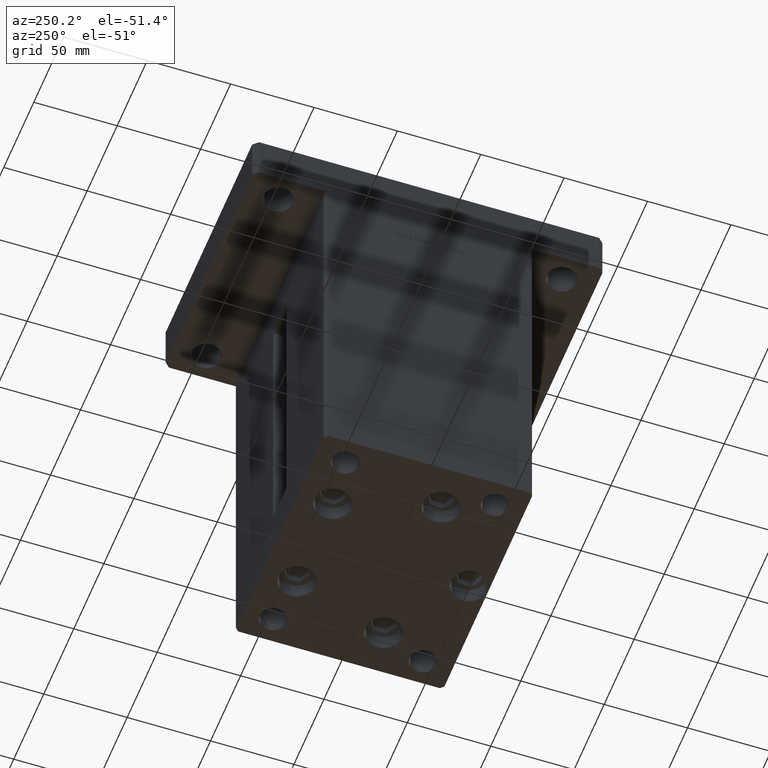
[diagram: clean part render]
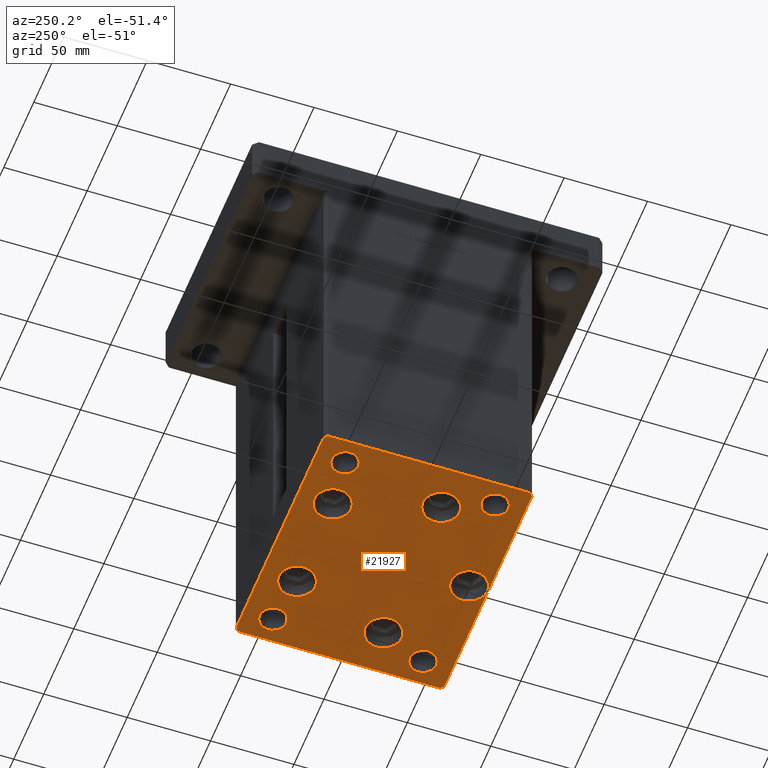
[diagram: same view with one face highlighted and labeled with its STEP entity id]
A machine part, auxiliary view. The second image highlights one B-rep face of the part: STEP entity #21927.
In plain terms, the highlighted planar face has unit normal (0, 0, -1).
Its self-contained STEP definition (entity closure, byte-faithful):
#543 = VECTOR ( 'NONE', #2742, 1000.000000000000000 ) ;
#996 = LINE ( 'NONE', #47949, #27653 ) ;
#1145 = DIRECTION ( 'NONE',  ( -0.000000000000000000, 0.000000000000000000, 1.000000000000000000 ) ) ;
#1246 = AXIS2_PLACEMENT_3D ( 'NONE', #38789, #34855, #47705 ) ;
#1390 = EDGE_CURVE ( 'NONE', #47092, #22285, #41064, .T. ) ;
#1594 = EDGE_CURVE ( 'NONE', #47711, #4756, #25498, .T. ) ;
#1863 = ORIENTED_EDGE ( 'NONE', *, *, #53263, .T. ) ;
#1874 = CARTESIAN_POINT ( 'NONE',  ( 60.00000000000000000, -44.99999999999999289, 0.000000000000000000 ) ) ;
#2217 = DIRECTION ( 'NONE',  ( 1.000000000000000000, 0.000000000000000000, 0.000000000000000000 ) ) ;
#2742 = DIRECTION ( 'NONE',  ( -6.881547673296424104E-16, 1.000000000000000000, 0.000000000000000000 ) ) ;
#2806 = VERTEX_POINT ( 'NONE', #42045 ) ;
#3292 = AXIS2_PLACEMENT_3D ( 'NONE', #18413, #31273, #48306 ) ;
#3450 = DIRECTION ( 'NONE',  ( 0.000000000000000000, -0.000000000000000000, -1.000000000000000000 ) ) ;
#3507 = FACE_BOUND ( 'NONE', #14897, .T. ) ;
#3546 = DIRECTION ( 'NONE',  ( 0.000000000000000000, -0.000000000000000000, -1.000000000000000000 ) ) ;
#3828 = ORIENTED_EDGE ( 'NONE', *, *, #43354, .T. ) ;
#4528 = VERTEX_POINT ( 'NONE', #41470 ) ;
#4538 = ORIENTED_EDGE ( 'NONE', *, *, #49348, .T. ) ;
#4756 = VERTEX_POINT ( 'NONE', #36372 ) ;
#5054 = CIRCLE ( 'NONE', #38977, 11.00000000000000000 ) ;
#5192 = CARTESIAN_POINT ( 'NONE',  ( -40.73102073172060500, 41.43749999999998579, 0.000000000000000000 ) ) ;
#5193 = VERTEX_POINT ( 'NONE', #8831 ) ;
#6297 = ORIENTED_EDGE ( 'NONE', *, *, #24275, .F. ) ;
#6697 = VERTEX_POINT ( 'NONE', #44289 ) ;
#7385 = CARTESIAN_POINT ( 'NONE',  ( -51.99999999999999289, -45.00000000000000000, 0.000000000000000000 ) ) ;
#7734 = ORIENTED_EDGE ( 'NONE', *, *, #32383, .T. ) ;
#7786 = VECTOR ( 'NONE', #15403, 1000.000000000000114 ) ;
#8065 = CARTESIAN_POINT ( 'NONE',  ( 75.00000000000001421, -60.50000000000000711, 0.000000000000000000 ) ) ;
#8517 = CARTESIAN_POINT ( 'NONE',  ( 68.00000000000000000, -44.99999999999999289, 0.000000000000000000 ) ) ;
#8586 = CIRCLE ( 'NONE', #40719, 11.00000000000000355 ) ;
#8831 = CARTESIAN_POINT ( 'NONE',  ( 11.00000000000000711, -51.00000000000000000, 0.000000000000000000 ) ) ;
#9202 = DIRECTION ( 'NONE',  ( 0.000000000000000000, -0.000000000000000000, -1.000000000000000000 ) ) ;
#9730 = CIRCLE ( 'NONE', #28615, 10.99999999999999645 ) ;
#10327 = CARTESIAN_POINT ( 'NONE',  ( 60.00000000000000000, 44.99999999999999289, 0.000000000000000000 ) ) ;
#11375 = DIRECTION ( 'NONE',  ( 1.000000000000000000, 0.000000000000000000, 0.000000000000000000 ) ) ;
#11486 = CARTESIAN_POINT ( 'NONE',  ( -73.00000000000001421, 62.49999999999998579, 0.000000000000000000 ) ) ;
#11679 = DIRECTION ( 'NONE',  ( 1.000000000000000000, 0.000000000000000000, 0.000000000000000000 ) ) ;
#11699 = CARTESIAN_POINT ( 'NONE',  ( -75.00000000000001421, -60.50000000000001421, 0.000000000000000000 ) ) ;
#11700 = ORIENTED_EDGE ( 'NONE', *, *, #34774, .T. ) ;
#11723 = CARTESIAN_POINT ( 'NONE',  ( -52.00000000000000000, 45.00000000000000000, 0.000000000000000000 ) ) ;
#12027 = ORIENTED_EDGE ( 'NONE', *, *, #12325, .T. ) ;
#12119 = AXIS2_PLACEMENT_3D ( 'NONE', #29812, #41849, #24236 ) ;
#12325 = EDGE_CURVE ( 'NONE', #21466, #32756, #37883, .T. ) ;
#12528 = EDGE_CURVE ( 'NONE', #54091, #13635, #28061, .T. ) ;
#12656 = CIRCLE ( 'NONE', #43012, 8.000000000000000000 ) ;
#12814 = ORIENTED_EDGE ( 'NONE', *, *, #49554, .T. ) ;
#13002 = VECTOR ( 'NONE', #37692, 1000.000000000000114 ) ;
#13470 = DIRECTION ( 'NONE',  ( -0.000000000000000000, 0.000000000000000000, 1.000000000000000000 ) ) ;
#13635 = VERTEX_POINT ( 'NONE', #8517 ) ;
#14198 = ORIENTED_EDGE ( 'NONE', *, *, #1390, .T. ) ;
#14472 = CARTESIAN_POINT ( 'NONE',  ( -29.73102073172060500, 41.43749999999998579, 0.000000000000000000 ) ) ;
#14740 = EDGE_CURVE ( 'NONE', #53317, #6697, #38839, .T. ) ;
#14855 = EDGE_CURVE ( 'NONE', #30073, #39517, #53975, .T. ) ;
#14897 = EDGE_LOOP ( 'NONE', ( #40157, #28334 ) ) ;
#15128 = CIRCLE ( 'NONE', #27622, 11.00000000000000355 ) ;
#15403 = DIRECTION ( 'NONE',  ( -0.7071067811865451302, -0.7071067811865500152, 0.000000000000000000 ) ) ;
#15523 = FACE_BOUND ( 'NONE', #29633, .T. ) ;
#15888 = LINE ( 'NONE', #49967, #543 ) ;
#15898 = CIRCLE ( 'NONE', #18586, 11.00000000000000355 ) ;
#16287 = CARTESIAN_POINT ( 'NONE',  ( -73.00000000000001421, -62.50000000000002842, 0.000000000000000000 ) ) ;
#16393 = VERTEX_POINT ( 'NONE', #39264 ) ;
#16460 = EDGE_LOOP ( 'NONE', ( #22301, #17371 ) ) ;
#16533 = AXIS2_PLACEMENT_3D ( 'NONE', #51470, #13470, #26608 ) ;
#16793 = VERTEX_POINT ( 'NONE', #33015 ) ;
#16820 = DIRECTION ( 'NONE',  ( 0.7071067811865463515, 0.7071067811865487940, 0.000000000000000000 ) ) ;
#16954 = ORIENTED_EDGE ( 'NONE', *, *, #35555, .T. ) ;
#17371 = ORIENTED_EDGE ( 'NONE', *, *, #12528, .T. ) ;
#18130 = DIRECTION ( 'NONE',  ( -0.7071067811865500152, 0.7071067811865451302, 0.000000000000000000 ) ) ;
#18413 = CARTESIAN_POINT ( 'NONE',  ( -60.00000000000000000, 45.00000000000000000, 0.000000000000000000 ) ) ;
#18513 = DIRECTION ( 'NONE',  ( 1.000000000000000000, 0.000000000000000000, 0.000000000000000000 ) ) ;
#18586 = AXIS2_PLACEMENT_3D ( 'NONE', #43564, #9202, #46940 ) ;
#18643 = ORIENTED_EDGE ( 'NONE', *, *, #14740, .F. ) ;
#18668 = ORIENTED_EDGE ( 'NONE', *, *, #50586, .T. ) ;
#19234 = CARTESIAN_POINT ( 'NONE',  ( 51.99999999999999289, -44.99999999999999289, 0.000000000000000000 ) ) ;
#19452 = VERTEX_POINT ( 'NONE', #7385 ) ;
#20073 = CARTESIAN_POINT ( 'NONE',  ( 74.99999999999992895, 60.50000000000002842, 0.000000000000000000 ) ) ;
#20228 = VECTOR ( 'NONE', #18130, 1000.000000000000114 ) ;
#20289 = CARTESIAN_POINT ( 'NONE',  ( 18.73102073172060500, 41.43749999999999289, 0.000000000000000000 ) ) ;
#20763 = DIRECTION ( 'NONE',  ( 1.000000000000000000, 0.000000000000000000, 0.000000000000000000 ) ) ;
#21012 = CARTESIAN_POINT ( 'NONE',  ( 73.00000000000001421, -62.50000000000001421, 0.000000000000000000 ) ) ;
#21077 = EDGE_LOOP ( 'NONE', ( #26524, #6297 ) ) ;
#21318 = ORIENTED_EDGE ( 'NONE', *, *, #42330, .T. ) ;
#21466 = VERTEX_POINT ( 'NONE', #45893 ) ;
#21646 = CARTESIAN_POINT ( 'NONE',  ( 60.00000000000000000, -44.99999999999999289, 0.000000000000000000 ) ) ;
#21693 = EDGE_LOOP ( 'NONE', ( #18668, #12027 ) ) ;
#21927 = ADVANCED_FACE ( 'NONE', ( #41233, #28936, #41800, #3507, #15523, #40959, #27826, #32551, #44851, #23627 ), #36475, .T. ) ;
#22285 = VERTEX_POINT ( 'NONE', #16287 ) ;
#22301 = ORIENTED_EDGE ( 'NONE', *, *, #23953, .T. ) ;
#22571 = DIRECTION ( 'NONE',  ( 0.000000000000000000, -0.000000000000000000, -1.000000000000000000 ) ) ;
#22676 = AXIS2_PLACEMENT_3D ( 'NONE', #14472, #52190, #47728 ) ;
#22813 = EDGE_CURVE ( 'NONE', #40563, #47092, #31815, .T. ) ;
#23234 = VERTEX_POINT ( 'NONE', #41351 ) ;
#23627 = FACE_BOUND ( 'NONE', #47702, .T. ) ;
#23661 = DIRECTION ( 'NONE',  ( 1.000000000000000000, 0.000000000000000000, 0.000000000000000000 ) ) ;
#23826 = AXIS2_PLACEMENT_3D ( 'NONE', #21646, #35311, #26393 ) ;
#23953 = EDGE_CURVE ( 'NONE', #13635, #54091, #37186, .T. ) ;
#24016 = EDGE_LOOP ( 'NONE', ( #14198, #16954, #11700, #12814, #4538, #21318, #26557, #51904 ) ) ;
#24236 = DIRECTION ( 'NONE',  ( 1.000000000000000000, 0.000000000000000000, 0.000000000000000000 ) ) ;
#24275 = EDGE_CURVE ( 'NONE', #39517, #30073, #27388, .T. ) ;
#24833 = CARTESIAN_POINT ( 'NONE',  ( 48.08326112068522207, -16.99999999999999645, 0.000000000000000000 ) ) ;
#25498 = CIRCLE ( 'NONE', #47765, 11.00000000000000355 ) ;
#25798 = CARTESIAN_POINT ( 'NONE',  ( -60.00000000000000000, 45.00000000000000000, 0.000000000000000000 ) ) ;
#26393 = DIRECTION ( 'NONE',  ( 1.000000000000000000, 0.000000000000000000, 0.000000000000000000 ) ) ;
#26524 = ORIENTED_EDGE ( 'NONE', *, *, #14855, .F. ) ;
#26557 = ORIENTED_EDGE ( 'NONE', *, *, #55064, .T. ) ;
#26608 = DIRECTION ( 'NONE',  ( 1.000000000000000000, 0.000000000000000000, 0.000000000000000000 ) ) ;
#26706 = CARTESIAN_POINT ( 'NONE',  ( 40.73102073172059079, 41.43749999999999289, 0.000000000000000000 ) ) ;
#27303 = EDGE_CURVE ( 'NONE', #23234, #16793, #15898, .T. ) ;
#27388 = CIRCLE ( 'NONE', #3292, 8.000000000000000000 ) ;
#27622 = AXIS2_PLACEMENT_3D ( 'NONE', #32624, #31808, #35721 ) ;
#27653 = VECTOR ( 'NONE', #35090, 1000.000000000000000 ) ;
#27826 = FACE_BOUND ( 'NONE', #16460, .T. ) ;
#28061 = CIRCLE ( 'NONE', #35195, 8.000000000000007105 ) ;
#28125 = CIRCLE ( 'NONE', #45063, 11.00000000000000000 ) ;
#28214 = CARTESIAN_POINT ( 'NONE',  ( 73.00000000000001421, -62.50000000000001421, 0.000000000000000000 ) ) ;
#28226 = DIRECTION ( 'NONE',  ( 0.000000000000000000, -0.000000000000000000, -1.000000000000000000 ) ) ;
#28334 = ORIENTED_EDGE ( 'NONE', *, *, #38636, .T. ) ;
#28375 = VERTEX_POINT ( 'NONE', #8065 ) ;
#28615 = AXIS2_PLACEMENT_3D ( 'NONE', #52604, #40800, #18513 ) ;
#28936 = FACE_BOUND ( 'NONE', #32022, .T. ) ;
#29027 = LINE ( 'NONE', #41887, #50302 ) ;
#29103 = ORIENTED_EDGE ( 'NONE', *, *, #51565, .T. ) ;
#29633 = EDGE_LOOP ( 'NONE', ( #54110, #40003 ) ) ;
#29812 = CARTESIAN_POINT ( 'NONE',  ( -59.99999999999999289, -45.00000000000000000, 0.000000000000000000 ) ) ;
#30073 = VERTEX_POINT ( 'NONE', #11723 ) ;
#30501 = CARTESIAN_POINT ( 'NONE',  ( -10.99999999999999289, -51.00000000000000000, 0.000000000000000000 ) ) ;
#30552 = CIRCLE ( 'NONE', #44819, 8.000000000000007105 ) ;
#30592 = CIRCLE ( 'NONE', #38623, 11.00000000000000000 ) ;
#30860 = CIRCLE ( 'NONE', #12119, 8.000000000000000000 ) ;
#30889 = EDGE_CURVE ( 'NONE', #16793, #23234, #15128, .T. ) ;
#31273 = DIRECTION ( 'NONE',  ( -0.000000000000000000, 0.000000000000000000, 1.000000000000000000 ) ) ;
#31808 = DIRECTION ( 'NONE',  ( 0.000000000000000000, -0.000000000000000000, -1.000000000000000000 ) ) ;
#31815 = LINE ( 'NONE', #54637, #33603 ) ;
#32022 = EDGE_LOOP ( 'NONE', ( #7734, #3828 ) ) ;
#32383 = EDGE_CURVE ( 'NONE', #44894, #37975, #9730, .T. ) ;
#32551 = FACE_BOUND ( 'NONE', #21077, .T. ) ;
#32624 = CARTESIAN_POINT ( 'NONE',  ( -48.08326112068522207, -17.00000000000000711, 0.000000000000000000 ) ) ;
#32670 = AXIS2_PLACEMENT_3D ( 'NONE', #54071, #37595, #53792 ) ;
#32756 = VERTEX_POINT ( 'NONE', #5192 ) ;
#32915 = DIRECTION ( 'NONE',  ( 0.000000000000000000, -0.000000000000000000, -1.000000000000000000 ) ) ;
#33015 = CARTESIAN_POINT ( 'NONE',  ( -37.08326112068521496, -17.00000000000000711, 0.000000000000000000 ) ) ;
#33603 = VECTOR ( 'NONE', #37606, 1000.000000000000000 ) ;
#33617 = DIRECTION ( 'NONE',  ( 0.000000000000000000, -0.000000000000000000, -1.000000000000000000 ) ) ;
#33861 = LINE ( 'NONE', #21012, #54376 ) ;
#34774 = EDGE_CURVE ( 'NONE', #37794, #28375, #33861, .T. ) ;
#34855 = DIRECTION ( 'NONE',  ( 0.000000000000000000, -0.000000000000000000, -1.000000000000000000 ) ) ;
#35090 = DIRECTION ( 'NONE',  ( 1.000000000000000000, 9.505334114941407284E-17, 0.000000000000000000 ) ) ;
#35195 = AXIS2_PLACEMENT_3D ( 'NONE', #1874, #41283, #11375 ) ;
#35311 = DIRECTION ( 'NONE',  ( 0.000000000000000000, -0.000000000000000000, -1.000000000000000000 ) ) ;
#35417 = CARTESIAN_POINT ( 'NONE',  ( 48.08326112068522207, -16.99999999999999645, 0.000000000000000000 ) ) ;
#35555 = EDGE_CURVE ( 'NONE', #22285, #37794, #996, .T. ) ;
#35721 = DIRECTION ( 'NONE',  ( 1.000000000000000000, 0.000000000000000000, 0.000000000000000000 ) ) ;
#36372 = CARTESIAN_POINT ( 'NONE',  ( 37.08326112068521496, -16.99999999999999645, 0.000000000000000000 ) ) ;
#36475 = PLANE ( 'NONE',  #32670 ) ;
#36633 = LINE ( 'NONE', #11486, #7786 ) ;
#36783 = DIRECTION ( 'NONE',  ( 1.000000000000000000, 0.000000000000000000, 0.000000000000000000 ) ) ;
#36790 = EDGE_CURVE ( 'NONE', #2806, #19452, #12656, .T. ) ;
#37186 = CIRCLE ( 'NONE', #23826, 8.000000000000007105 ) ;
#37595 = DIRECTION ( 'NONE',  ( -0.000000000000000000, 0.000000000000000000, 1.000000000000000000 ) ) ;
#37606 = DIRECTION ( 'NONE',  ( 0.000000000000000000, -1.000000000000000000, 0.000000000000000000 ) ) ;
#37692 = DIRECTION ( 'NONE',  ( 0.7071067811865451302, -0.7071067811865500152, 0.000000000000000000 ) ) ;
#37794 = VERTEX_POINT ( 'NONE', #28214 ) ;
#37810 = CARTESIAN_POINT ( 'NONE',  ( -59.99999999999999289, -45.00000000000000000, 0.000000000000000000 ) ) ;
#37818 = EDGE_LOOP ( 'NONE', ( #1863, #54211 ) ) ;
#37833 = EDGE_CURVE ( 'NONE', #6697, #53317, #30552, .T. ) ;
#37883 = CIRCLE ( 'NONE', #22676, 11.00000000000000000 ) ;
#37975 = VERTEX_POINT ( 'NONE', #26706 ) ;
#38261 = DIRECTION ( 'NONE',  ( 1.000000000000000000, 0.000000000000000000, 0.000000000000000000 ) ) ;
#38623 = AXIS2_PLACEMENT_3D ( 'NONE', #53909, #28226, #2217 ) ;
#38636 = EDGE_CURVE ( 'NONE', #5193, #52671, #30592, .T. ) ;
#38789 = CARTESIAN_POINT ( 'NONE',  ( 29.73102073172059789, 41.43749999999999289, 0.000000000000000000 ) ) ;
#38839 = CIRCLE ( 'NONE', #16533, 8.000000000000007105 ) ;
#38977 = AXIS2_PLACEMENT_3D ( 'NONE', #50199, #3546, #36783 ) ;
#39264 = CARTESIAN_POINT ( 'NONE',  ( -73.00000000000001421, 62.49999999999998579, 0.000000000000000000 ) ) ;
#39517 = VERTEX_POINT ( 'NONE', #54805 ) ;
#40003 = ORIENTED_EDGE ( 'NONE', *, *, #30889, .T. ) ;
#40157 = ORIENTED_EDGE ( 'NONE', *, *, #45154, .T. ) ;
#40232 = DIRECTION ( 'NONE',  ( -0.000000000000000000, 0.000000000000000000, 1.000000000000000000 ) ) ;
#40563 = VERTEX_POINT ( 'NONE', #51108 ) ;
#40719 = AXIS2_PLACEMENT_3D ( 'NONE', #24833, #32915, #11679 ) ;
#40800 = DIRECTION ( 'NONE',  ( 0.000000000000000000, -0.000000000000000000, -1.000000000000000000 ) ) ;
#40959 = FACE_BOUND ( 'NONE', #50550, .T. ) ;
#41064 = LINE ( 'NONE', #11699, #13002 ) ;
#41233 = FACE_BOUND ( 'NONE', #21693, .T. ) ;
#41283 = DIRECTION ( 'NONE',  ( 0.000000000000000000, -0.000000000000000000, -1.000000000000000000 ) ) ;
#41351 = CARTESIAN_POINT ( 'NONE',  ( -59.08326112068522207, -17.00000000000000711, 0.000000000000000000 ) ) ;
#41470 = CARTESIAN_POINT ( 'NONE',  ( 72.99999999999992895, 62.50000000000001421, 0.000000000000000000 ) ) ;
#41560 = ORIENTED_EDGE ( 'NONE', *, *, #36790, .T. ) ;
#41800 = FACE_BOUND ( 'NONE', #37818, .T. ) ;
#41849 = DIRECTION ( 'NONE',  ( 0.000000000000000000, -0.000000000000000000, -1.000000000000000000 ) ) ;
#41887 = CARTESIAN_POINT ( 'NONE',  ( 72.99999999999992895, 62.50000000000001421, 0.000000000000000000 ) ) ;
#42045 = CARTESIAN_POINT ( 'NONE',  ( -67.99999999999998579, -45.00000000000000000, 0.000000000000000000 ) ) ;
#42124 = CARTESIAN_POINT ( 'NONE',  ( 59.08326112068522207, -16.99999999999999645, 0.000000000000000000 ) ) ;
#42223 = VERTEX_POINT ( 'NONE', #20073 ) ;
#42330 = EDGE_CURVE ( 'NONE', #4528, #16393, #29027, .T. ) ;
#42427 = DIRECTION ( 'NONE',  ( -1.000000000000000000, -1.901066822988282689E-16, 0.000000000000000000 ) ) ;
#42761 = CARTESIAN_POINT ( 'NONE',  ( 74.99999999999992895, 60.50000000000002842, 0.000000000000000000 ) ) ;
#43012 = AXIS2_PLACEMENT_3D ( 'NONE', #37810, #33617, #20763 ) ;
#43090 = DIRECTION ( 'NONE',  ( 1.000000000000000000, 0.000000000000000000, 0.000000000000000000 ) ) ;
#43354 = EDGE_CURVE ( 'NONE', #37975, #44894, #49452, .T. ) ;
#43564 = CARTESIAN_POINT ( 'NONE',  ( -48.08326112068522207, -17.00000000000000711, 0.000000000000000000 ) ) ;
#44289 = CARTESIAN_POINT ( 'NONE',  ( 68.00000000000000000, 44.99999999999999289, 0.000000000000000000 ) ) ;
#44819 = AXIS2_PLACEMENT_3D ( 'NONE', #10327, #40232, #38261 ) ;
#44851 = FACE_OUTER_BOUND ( 'NONE', #24016, .T. ) ;
#44894 = VERTEX_POINT ( 'NONE', #20289 ) ;
#45063 = AXIS2_PLACEMENT_3D ( 'NONE', #54012, #3450, #45644 ) ;
#45086 = AXIS2_PLACEMENT_3D ( 'NONE', #25798, #1145, #43090 ) ;
#45154 = EDGE_CURVE ( 'NONE', #52671, #5193, #28125, .T. ) ;
#45644 = DIRECTION ( 'NONE',  ( 1.000000000000000000, 0.000000000000000000, 0.000000000000000000 ) ) ;
#45893 = CARTESIAN_POINT ( 'NONE',  ( -18.73102073172060500, 41.43749999999998579, 0.000000000000000000 ) ) ;
#46072 = ORIENTED_EDGE ( 'NONE', *, *, #37833, .F. ) ;
#46493 = CARTESIAN_POINT ( 'NONE',  ( -75.00000000000001421, -60.50000000000001421, 0.000000000000000000 ) ) ;
#46940 = DIRECTION ( 'NONE',  ( 1.000000000000000000, 0.000000000000000000, 0.000000000000000000 ) ) ;
#46944 = LINE ( 'NONE', #42761, #20228 ) ;
#47092 = VERTEX_POINT ( 'NONE', #46493 ) ;
#47702 = EDGE_LOOP ( 'NONE', ( #29103, #41560 ) ) ;
#47705 = DIRECTION ( 'NONE',  ( 1.000000000000000000, 0.000000000000000000, 0.000000000000000000 ) ) ;
#47711 = VERTEX_POINT ( 'NONE', #42124 ) ;
#47728 = DIRECTION ( 'NONE',  ( 1.000000000000000000, 0.000000000000000000, 0.000000000000000000 ) ) ;
#47765 = AXIS2_PLACEMENT_3D ( 'NONE', #35417, #22571, #23661 ) ;
#47949 = CARTESIAN_POINT ( 'NONE',  ( -73.00000000000001421, -62.50000000000002842, 0.000000000000000000 ) ) ;
#48306 = DIRECTION ( 'NONE',  ( 1.000000000000000000, 0.000000000000000000, 0.000000000000000000 ) ) ;
#49348 = EDGE_CURVE ( 'NONE', #42223, #4528, #46944, .T. ) ;
#49452 = CIRCLE ( 'NONE', #1246, 10.99999999999999645 ) ;
#49554 = EDGE_CURVE ( 'NONE', #28375, #42223, #15888, .T. ) ;
#49967 = CARTESIAN_POINT ( 'NONE',  ( 75.00000000000001421, -60.50000000000000711, 0.000000000000000000 ) ) ;
#50199 = CARTESIAN_POINT ( 'NONE',  ( -29.73102073172060500, 41.43749999999998579, 0.000000000000000000 ) ) ;
#50302 = VECTOR ( 'NONE', #42427, 1000.000000000000000 ) ;
#50550 = EDGE_LOOP ( 'NONE', ( #46072, #18643 ) ) ;
#50586 = EDGE_CURVE ( 'NONE', #32756, #21466, #5054, .T. ) ;
#51056 = CARTESIAN_POINT ( 'NONE',  ( 51.99999999999999289, 44.99999999999999289, 0.000000000000000000 ) ) ;
#51108 = CARTESIAN_POINT ( 'NONE',  ( -75.00000000000001421, 60.49999999999997158, 0.000000000000000000 ) ) ;
#51470 = CARTESIAN_POINT ( 'NONE',  ( 60.00000000000000000, 44.99999999999999289, 0.000000000000000000 ) ) ;
#51565 = EDGE_CURVE ( 'NONE', #19452, #2806, #30860, .T. ) ;
#51904 = ORIENTED_EDGE ( 'NONE', *, *, #22813, .T. ) ;
#52190 = DIRECTION ( 'NONE',  ( 0.000000000000000000, -0.000000000000000000, -1.000000000000000000 ) ) ;
#52604 = CARTESIAN_POINT ( 'NONE',  ( 29.73102073172059789, 41.43749999999999289, 0.000000000000000000 ) ) ;
#52671 = VERTEX_POINT ( 'NONE', #30501 ) ;
#53263 = EDGE_CURVE ( 'NONE', #4756, #47711, #8586, .T. ) ;
#53317 = VERTEX_POINT ( 'NONE', #51056 ) ;
#53792 = DIRECTION ( 'NONE',  ( 1.000000000000000000, 0.000000000000000000, 0.000000000000000000 ) ) ;
#53909 = CARTESIAN_POINT ( 'NONE',  ( 6.245698675651500444E-15, -51.00000000000000000, 0.000000000000000000 ) ) ;
#53975 = CIRCLE ( 'NONE', #45086, 8.000000000000000000 ) ;
#54012 = CARTESIAN_POINT ( 'NONE',  ( 6.245698675651500444E-15, -51.00000000000000000, 0.000000000000000000 ) ) ;
#54071 = CARTESIAN_POINT ( 'NONE',  ( 0.000000000000000000, 0.000000000000000000, 0.000000000000000000 ) ) ;
#54091 = VERTEX_POINT ( 'NONE', #19234 ) ;
#54110 = ORIENTED_EDGE ( 'NONE', *, *, #27303, .T. ) ;
#54211 = ORIENTED_EDGE ( 'NONE', *, *, #1594, .T. ) ;
#54376 = VECTOR ( 'NONE', #16820, 1000.000000000000000 ) ;
#54637 = CARTESIAN_POINT ( 'NONE',  ( -75.00000000000001421, 60.49999999999997158, 0.000000000000000000 ) ) ;
#54805 = CARTESIAN_POINT ( 'NONE',  ( -67.99999999999998579, 45.00000000000000000, 0.000000000000000000 ) ) ;
#55064 = EDGE_CURVE ( 'NONE', #16393, #40563, #36633, .T. ) ;